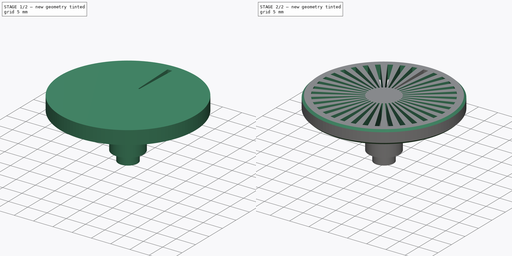
[diagram: build sequence overview — one tinted view per stage of 2, left to right]
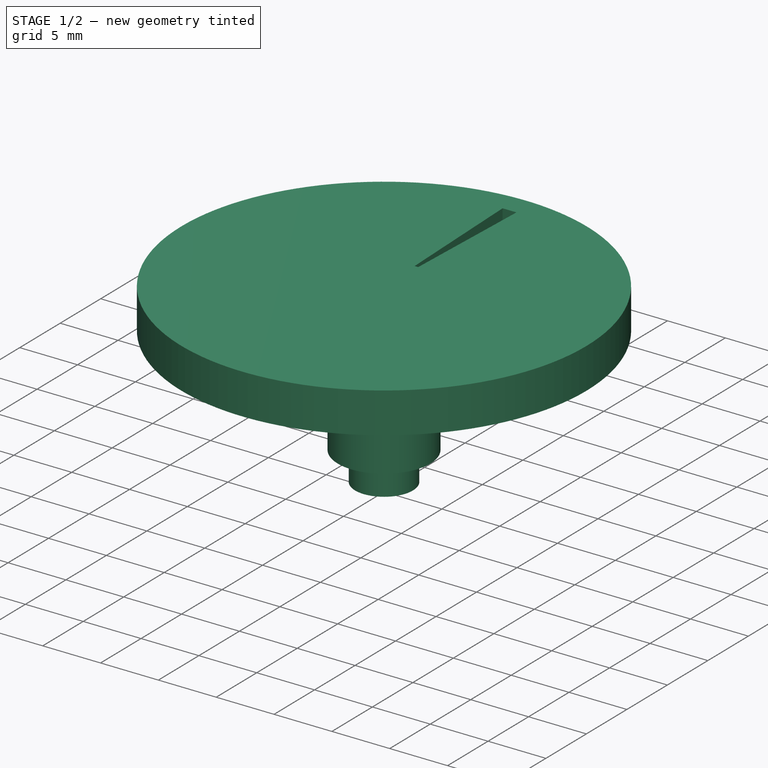
[diagram: stage 1 of 2 — iso view after this stage's code; geometry added in this stage tinted green]
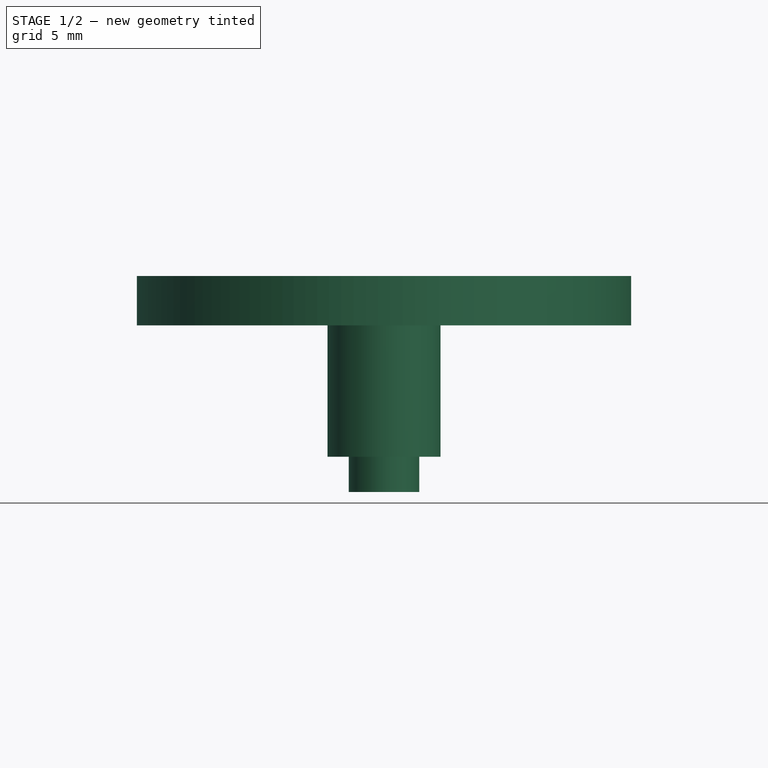
[diagram: stage 1 of 2 — front view after this stage's code; geometry added in this stage tinted green]
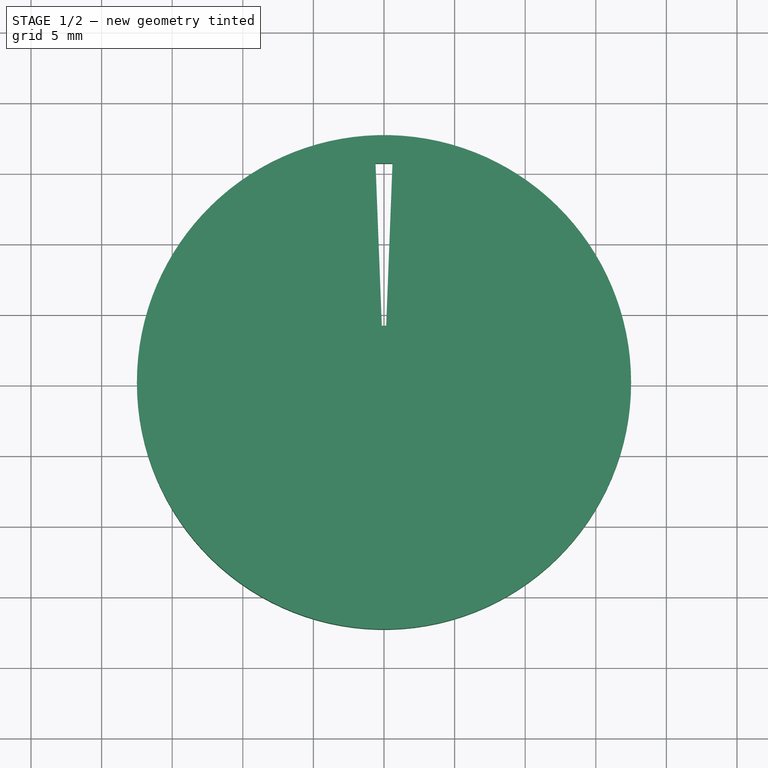
[diagram: stage 1 of 2 — top view after this stage's code; geometry added in this stage tinted green]
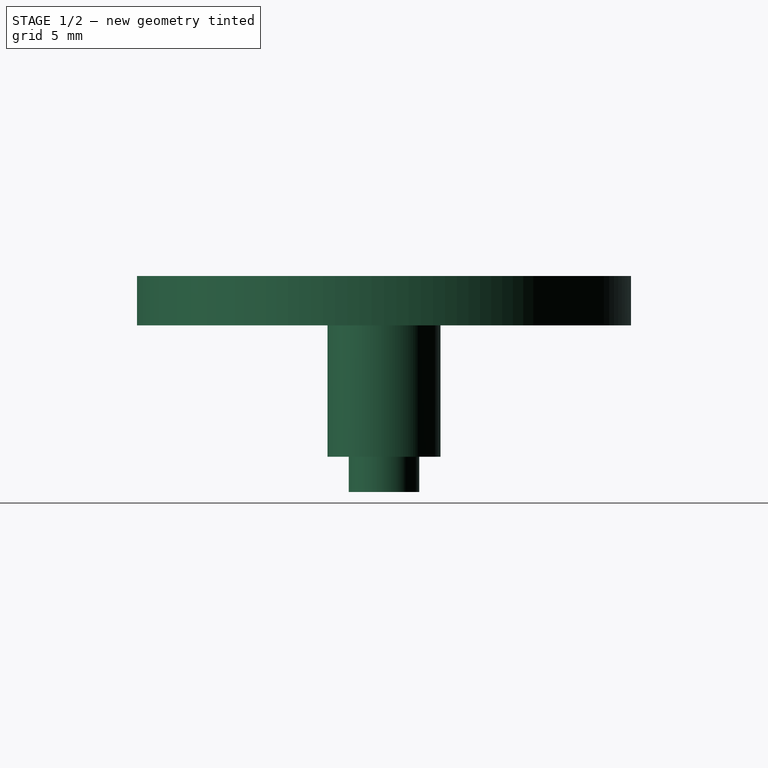
[diagram: stage 1 of 2 — right view after this stage's code; geometry added in this stage tinted green]
FCSTD DOCUMENT  (FreeCAD 0.20RUnknown)
Label: EngineShaftWheel
License: All rights reserved
LicenseURL: http://en.wikipedia.org/wiki/All_rights_reserved
objects: Sketcher::SketchObject×2, PartDesign::Revolution×1, PartDesign::Pocket×1, PartDesign::PolarPattern×1, PartDesign::Chamfer×1, PartDesign::Body×1
note: 10 computed .brp shape members not serialized (recipe doc carries the construction recipe); baked Part::Feature solids carry a one-line shape summary decoded from their .brp

FEATURE [Sketcher::SketchObject] Sketch  label="MainBodySketch"
  FullyConstrained = true
  MapMode = 5
  Placement = pos=(0,0,0) rot=(1,0,0;1.5708rad)
  Support = -> [XZ_Plane]
  sketch-geometry (8):
    g0: LineSegment StartX=0 StartY=0 StartZ=0 EndX=0 EndY=15.3 EndZ=0
    g1: LineSegment StartX=0 StartY=15.3 StartZ=0 EndX=17.5 EndY=15.3 EndZ=0
    g2: LineSegment StartX=17.5 StartY=15.3 StartZ=0 EndX=17.5 EndY=11.8 EndZ=0
    g3: LineSegment StartX=17.5 StartY=11.8 StartZ=0 EndX=4 EndY=11.8 EndZ=0
    g4: LineSegment StartX=4 StartY=11.8 StartZ=0 EndX=4 EndY=2.5 EndZ=0
    g5: LineSegment StartX=4 StartY=2.5 StartZ=0 EndX=2.5 EndY=2.5 EndZ=0
    g6: LineSegment StartX=2.5 StartY=2.5 StartZ=0 EndX=2.5 EndY=0 EndZ=0
    g7: LineSegment StartX=2.5 StartY=0 StartZ=0 EndX=0 EndY=0 EndZ=0
  constraints (24):
    c: Coincident(g-1,g0)
    c: PointOnObject(g0,g-2)
    c: Coincident(g0,g1)
    c: Horizontal(g1)
    c: Coincident(g1,g2)
    c: Coincident(g2,g3)
    c: Horizontal(g3)
    c: Coincident(g3,g4)
    c: Vertical(g4)
    c: Coincident(g4,g5)
    c: Coincident(g5,g6)
    c: PointOnObject(g6,g-1)
    c: Vertical(g6)
    c: Coincident(g6,g7)
    c: Coincident(g7,g0)
    c: Vertical(g2)
    c: Horizontal(g5)
    c: DistanceX(g7,g7) = 2.5
    c: DistanceY(g6,g6) = 2.5
    c: DistanceX(g4) = 4
    c: DistanceY(g4,g4) = 9.3
    c: DistanceX(g1,g1) = 17.5
    c: DistanceY(g2,g2) = 3.5
    c: DistanceY(g0,g0) = 15.3  'WheelHeight'
FEATURE [PartDesign::Revolution] Revolution  label="MainBodyRevolution"
  Angle = 360
  Axis = (0,2e-16,1)
  Base = (0,0,0)
  Placement = pos=(0,0,0) rot=(1,0,0;1.5708rad)
  Profile = -> Sketch
  ReferenceAxis = -> Sketch [V_Axis]
  Refine = true
  Reversed = true
FEATURE [Sketcher::SketchObject] Sketch001  label="HoleSketch"
  AttachmentOffset = pos=(0,0,15.3) rot=(0,0,1;0rad)
  FullyConstrained = true
  MapMode = 5
  Placement = pos=(0,0,15.3) rot=(0,0,1;0rad)
  Support = -> [XY_Plane]
  expr: .AttachmentOffset.Base.z = <<MainBodySketch>>.Constraints.WheelHeight
  sketch-geometry (5):
    g0: LineSegment StartX=-0.154839 StartY=4 StartZ=0 EndX=-0.6 EndY=15.5 EndZ=0
    g1: LineSegment StartX=-0.6 StartY=15.5 StartZ=0 EndX=0.6 EndY=15.5 EndZ=0
    g2: LineSegment StartX=0.6 StartY=15.5 StartZ=0 EndX=0.154839 EndY=4 EndZ=0
    g3: LineSegment StartX=0.154839 StartY=4 StartZ=0 EndX=-0.154839 EndY=4 EndZ=0
    g4: LineSegment StartX=-0.6 StartY=15.5 StartZ=0 EndX=0 EndY=0 EndZ=0
  constraints (12):
    c: Coincident(g0,g1)
    c: Coincident(g1,g2)
    c: Coincident(g2,g3)
    c: Coincident(g0,g3)
    c: Symmetric(g0,g1,g-2)
    c: Symmetric(g0,g2,g-2)
    c: DistanceY(g0) = 4
    c: DistanceY(g0) = 15.5
    c: DistanceX(g1,g1) = 1.2
    c: Coincident(g4,g0)
    c: Coincident(g4,g-1)
    c: PointOnObject(g0,g4)
FEATURE [PartDesign::Pocket] Pocket  label="HolePocket"
  BaseFeature = -> Revolution
  Direction = (0,0,-1)
  Length = 5
  Length2 = 5
  Placement = pos=(0,0,0) rot=(1,0,0;1.5708rad)
  Profile = -> Sketch001
  ReferenceAxis = -> Sketch001 [N_Axis]
  Refine = true
  Type = 1
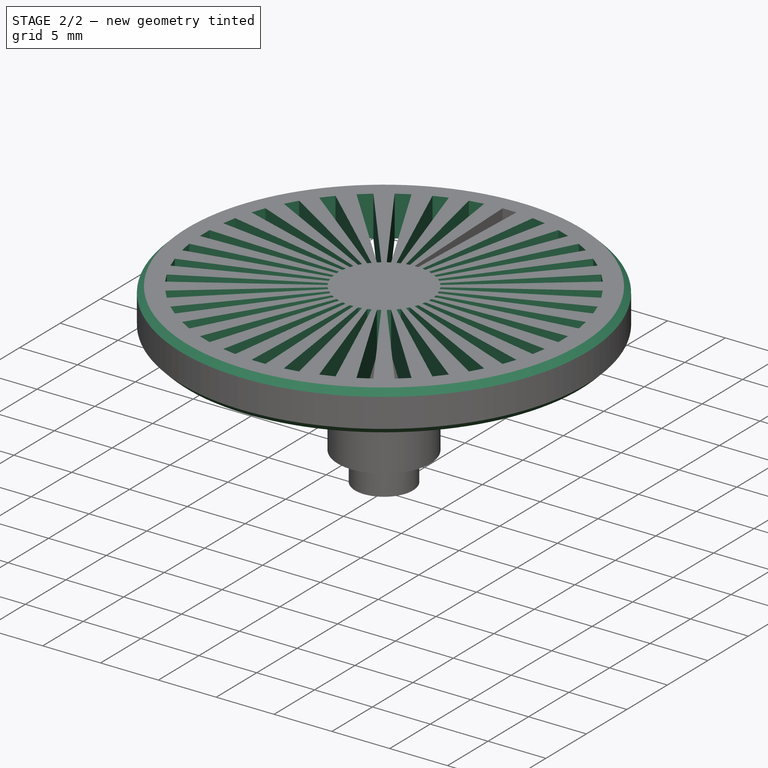
[diagram: stage 2 of 2 — iso view after this stage's code; geometry added in this stage tinted green]
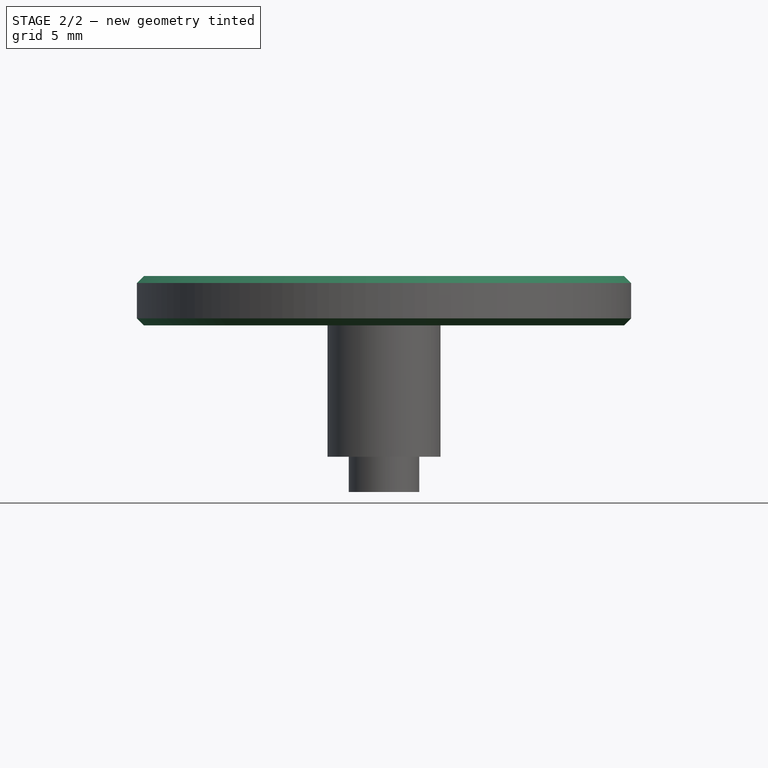
[diagram: stage 2 of 2 — front view after this stage's code; geometry added in this stage tinted green]
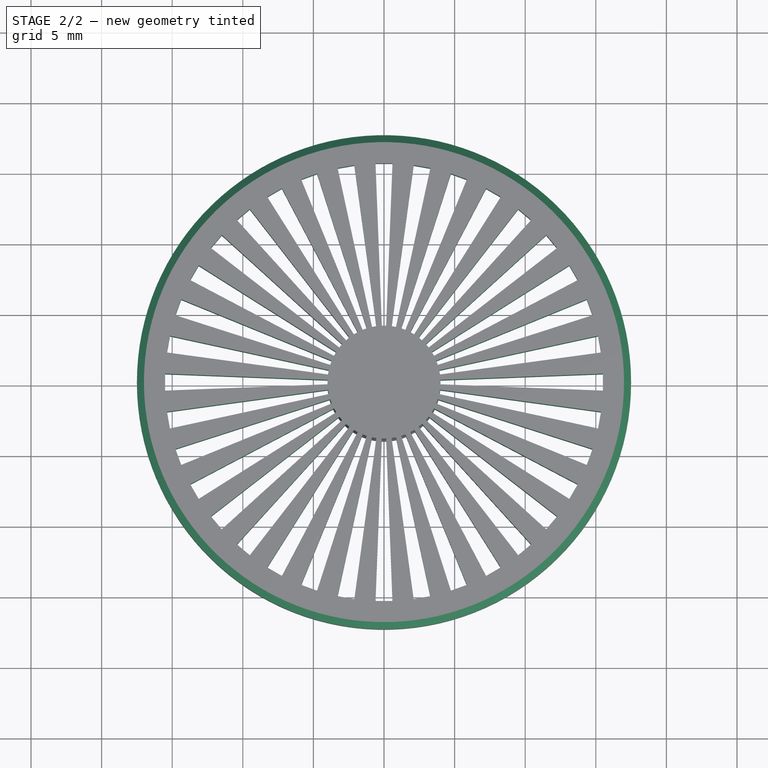
[diagram: stage 2 of 2 — top view after this stage's code; geometry added in this stage tinted green]
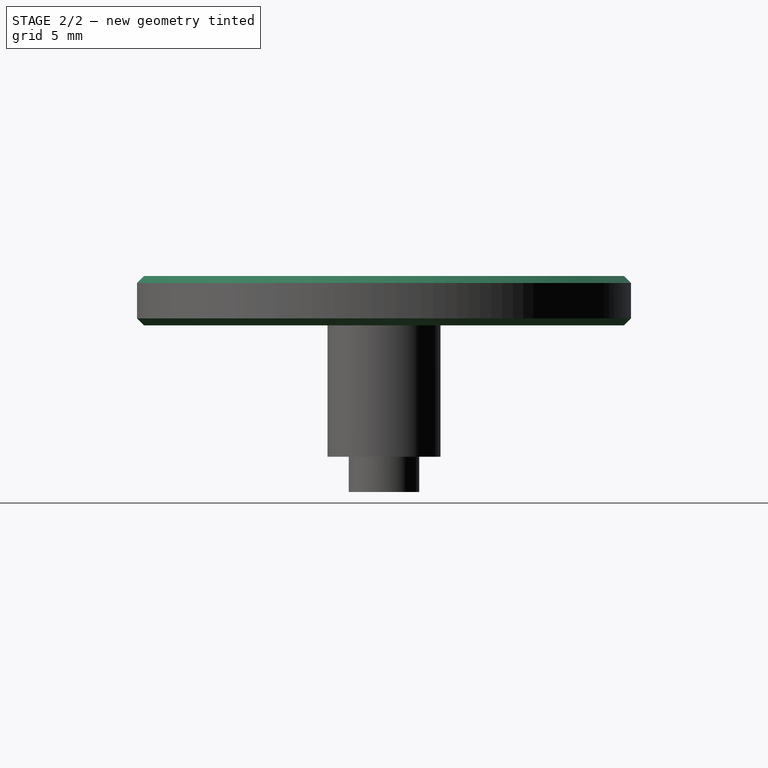
[diagram: stage 2 of 2 — right view after this stage's code; geometry added in this stage tinted green]
FEATURE [PartDesign::PolarPattern] PolarPattern  label="HolesPolarPattern"
  Angle = 360
  Axis = -> Sketch001 [N_Axis]
  BaseFeature = -> Pocket
  Occurrences = 36
  Originals = -> [Pocket]
  Placement = pos=(0,0,0) rot=(1,0,0;1.5708rad)
  Refine = true
FEATURE [PartDesign::Chamfer] Chamfer
  Angle = 45
  Base = -> PolarPattern [Edge1,Edge218]
  BaseFeature = -> PolarPattern
  ChamferType = 0
  FlipDirection = false
  Placement = pos=(0,0,0) rot=(1,0,0;1.5708rad)
  Refine = true
  Size = 0.5
  Size2 = 1
  SupportTransform = false
  UseAllEdges = false
FEATURE [PartDesign::Body] Body  label="EngineShaftWheel"
  Group = -> [Sketch,Revolution,Sketch001,Pocket,PolarPattern,Chamfer]
  Origin = -> Origin
  Tip = -> Chamfer
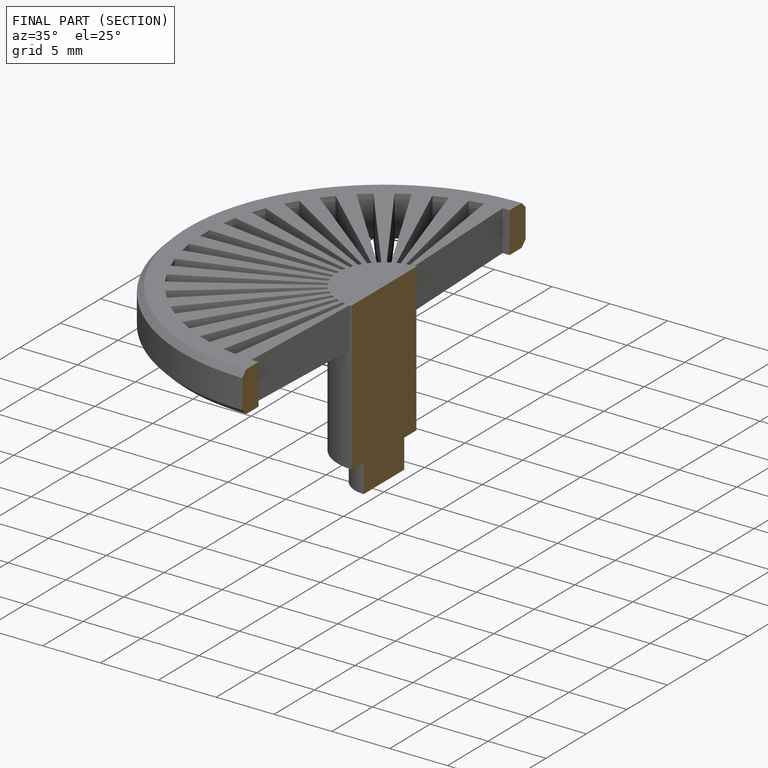
[diagram: finished part — half-section view (interior)]
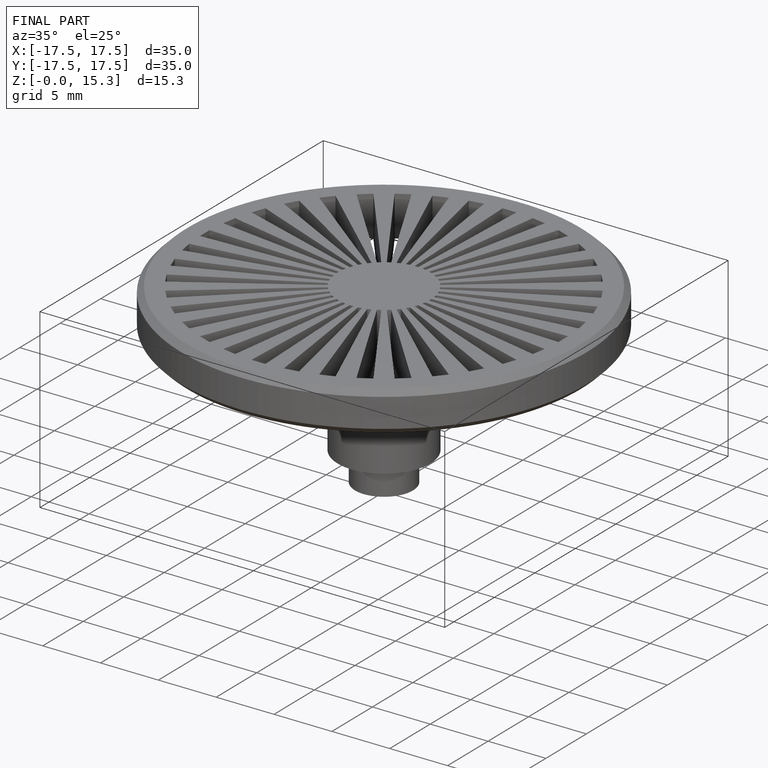
[diagram: finished part — iso view with bounding-box wireframe]
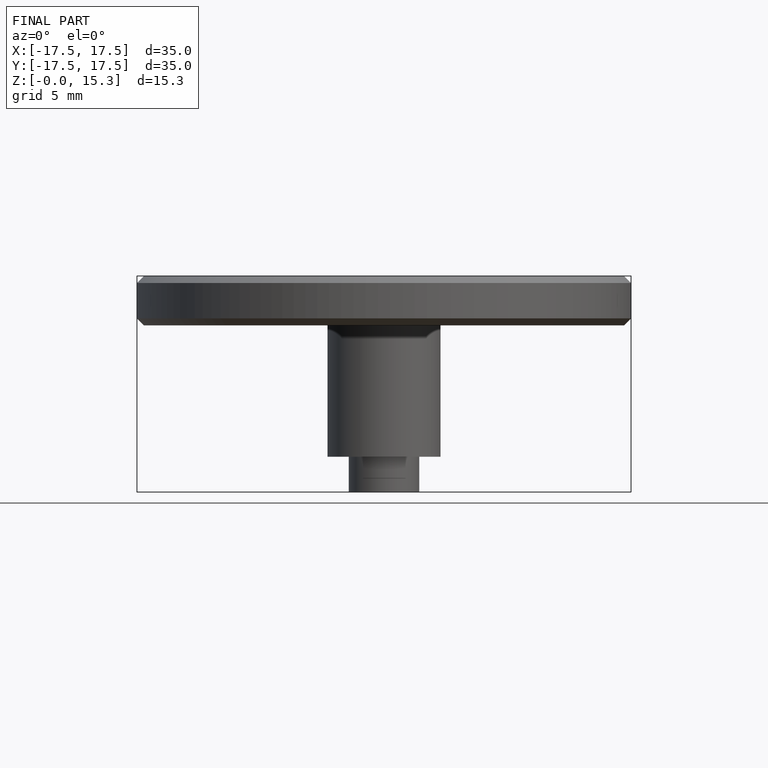
[diagram: finished part — front view with bounding-box wireframe]
